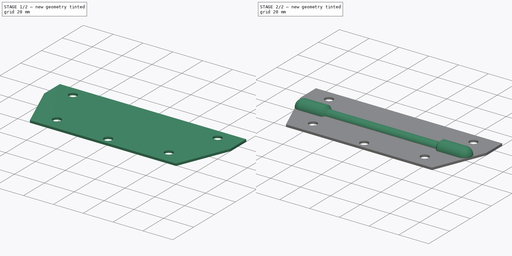
[diagram: build sequence overview — one tinted view per stage of 2, left to right]
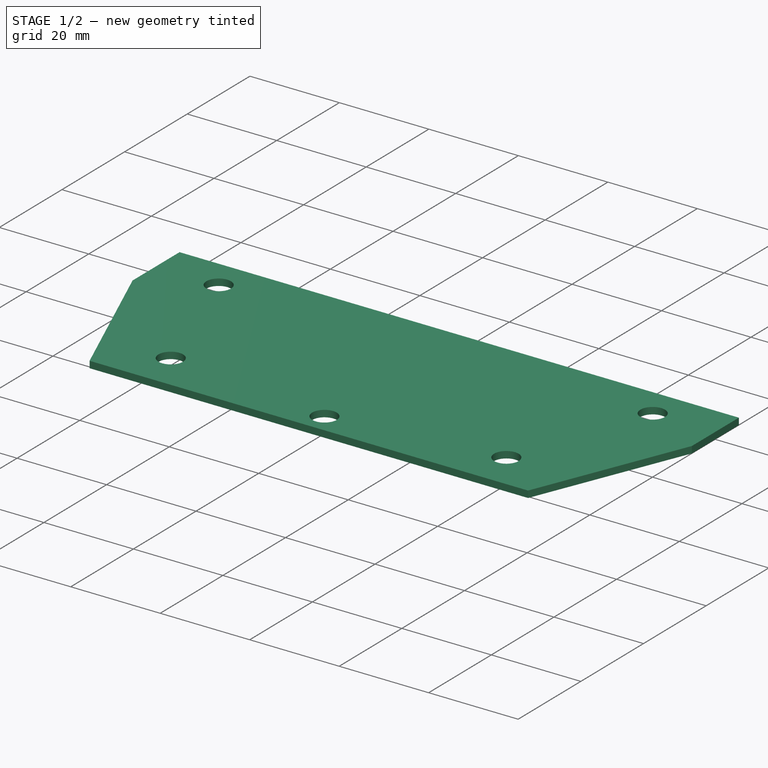
[diagram: stage 1 of 2 — iso view after this stage's code; geometry added in this stage tinted green]
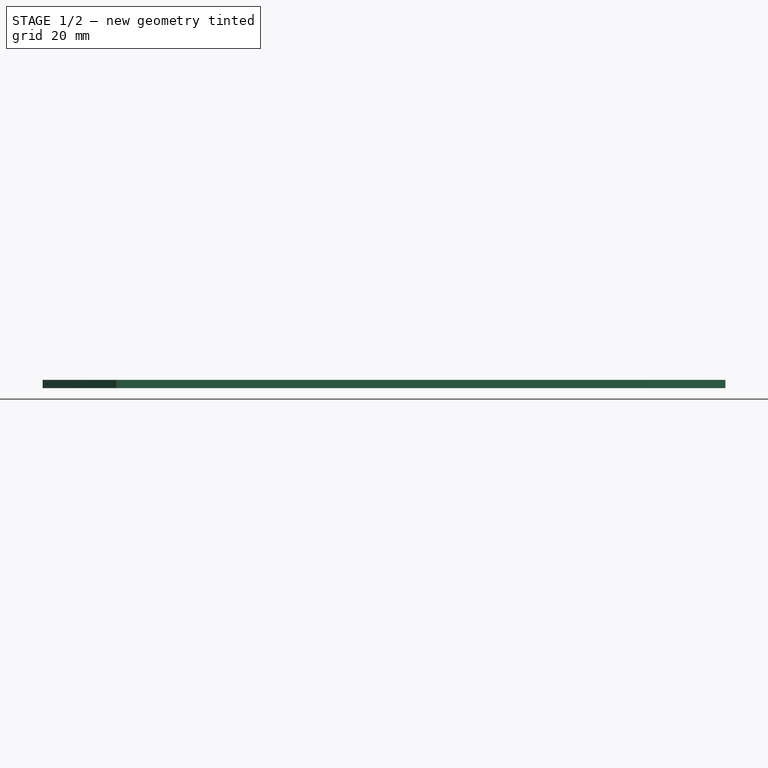
[diagram: stage 1 of 2 — front view after this stage's code; geometry added in this stage tinted green]
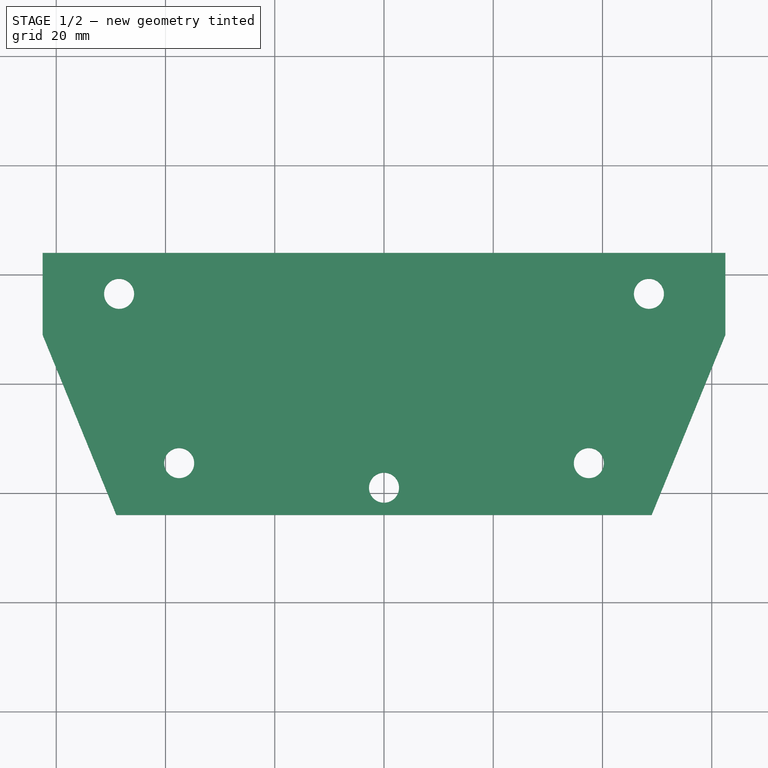
[diagram: stage 1 of 2 — top view after this stage's code; geometry added in this stage tinted green]
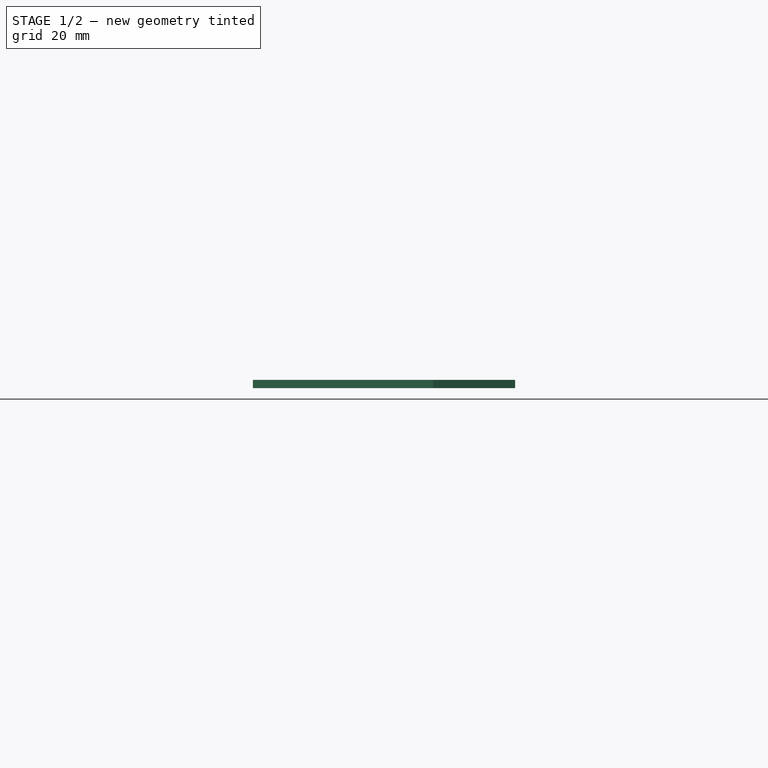
[diagram: stage 1 of 2 — right view after this stage's code; geometry added in this stage tinted green]
FCSTD DOCUMENT  (FreeCAD 1.0R39109 (Git))
Label: OCT-CHAND-AA
License: All rights reserved
LicenseURL: https://en.wikipedia.org/wiki/All_rights_reserved
objects: Sketcher::SketchObject×2, PartDesign::Pad×1, PartDesign::Revolution×1, PartDesign::Body×1
note: 11 computed .brp shape members not serialized (recipe doc carries the construction recipe); baked Part::Feature solids carry a one-line shape summary decoded from their .brp

FEATURE [Sketcher::SketchObject] Sketch
  ArcFitTolerance = 1e-06
  AttachmentSupport = -> [XY_Plane]
  FullyConstrained = true
  MakeInternals = false
  MapMode = 5
  sketch-geometry (13):
    g0: LineSegment StartX=-62.5 StartY=24 StartZ=0 EndX=62.5 EndY=24 EndZ=0
    g1: LineSegment StartX=62.5 StartY=24 StartZ=0 EndX=62.5 EndY=9 EndZ=0
    g2: LineSegment StartX=62.5 StartY=9 StartZ=0 EndX=49 EndY=-24 EndZ=0
    g3: LineSegment StartX=49 StartY=-24 StartZ=0 EndX=-49 EndY=-24 EndZ=0
    g4: LineSegment StartX=-49 StartY=-24 StartZ=0 EndX=-62.5 EndY=9 EndZ=0
    g5: LineSegment StartX=-62.5 StartY=9 StartZ=0 EndX=-62.5 EndY=24 EndZ=0
    g6: Circle CenterX=0 CenterY=-19 CenterZ=0 NormalX=0 NormalY=0 NormalZ=1 AngleXU=0 Radius=2.75
    g7: Circle CenterX=37.5 CenterY=-14.5 CenterZ=0 NormalX=0 NormalY=0 NormalZ=1 AngleXU=0 Radius=2.75
    g8: Circle CenterX=-37.5 CenterY=-14.5 CenterZ=0 NormalX=0 NormalY=0 NormalZ=1 AngleXU=0 Radius=2.75
    g9: Circle CenterX=-48.5 CenterY=16.5 CenterZ=0 NormalX=0 NormalY=0 NormalZ=1 AngleXU=0 Radius=2.75
    g10: Circle CenterX=48.5 CenterY=16.5 CenterZ=0 NormalX=0 NormalY=0 NormalZ=1 AngleXU=0 Radius=2.75
    g11: LineSegment [constr] StartX=48.5 StartY=16.5 StartZ=0 EndX=62.5 EndY=24 EndZ=0
    g12: LineSegment [constr] StartX=48.5 StartY=16.5 StartZ=0 EndX=62.5 EndY=9 EndZ=0
  constraints (34):
    c: Coincident(g0,g1)
    c: Coincident(g1,g2)
    c: Horizontal(g3)
    c: Coincident(g4,g5)
    c: Coincident(g5,g0)
    c: Vertical(g5)
    c: Vertical(g1)
    c: Symmetric(g0,g0,g-2)
    c: DistanceX(g0,g0) = 125
    c: DistanceY(g3,g0) = 48
    c: PointOnObject(g6,g-2)
    c: Equal(g6,g8)
    c: Equal(g8,g9)
    c: Equal(g9,g7)
    c: Equal(g7,g10)
    c: Diameter(g9) = 5.5
    c: Symmetric(g9,g10,g-2)
    c: Symmetric(g7,g8,g-2)
    c: DistanceY(g7,g10) = 31
    c: DistanceY(g6,g7) = 4.5
    c: DistanceX(g6,g7) = 37.5
    c: DistanceX(g-1,g10) = 48.5
    c: DistanceY(g3,g7) = 9.5
    c: Equal(g2,g4)
    c: Equal(g5,g1)
    c: DistanceX(g3,g3) = 98
    c: Coincident(g11,g10)
    c: Coincident(g11,g0)
    c: Coincident(g12,g10)
    c: Coincident(g12,g1)
    c: Equal(g12,g11)
    c: Distance(g0,g-1) = 24
    c: Coincident(g2,g3)
    c: Coincident(g4,g3)
FEATURE [PartDesign::Pad] Pad
  Direction = (0,0,1)
  Length = 1.5
  Length2 = 10
  Profile = -> Sketch
  ReferenceAxis = -> Sketch [N_Axis]
  Refine = true
  Reversed = true
  Suppressed = false
  Type = 0
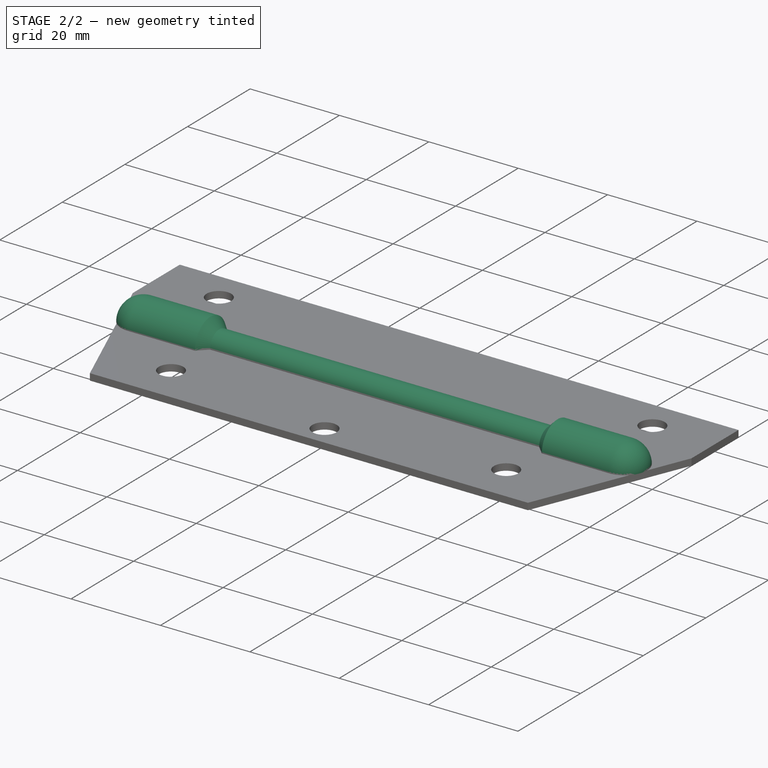
[diagram: stage 2 of 2 — iso view after this stage's code; geometry added in this stage tinted green]
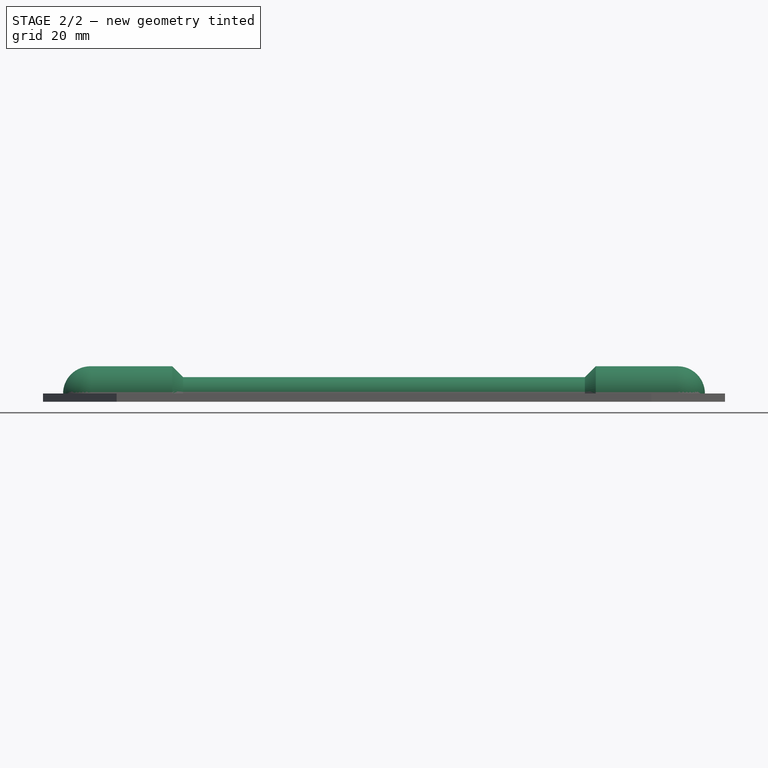
[diagram: stage 2 of 2 — front view after this stage's code; geometry added in this stage tinted green]
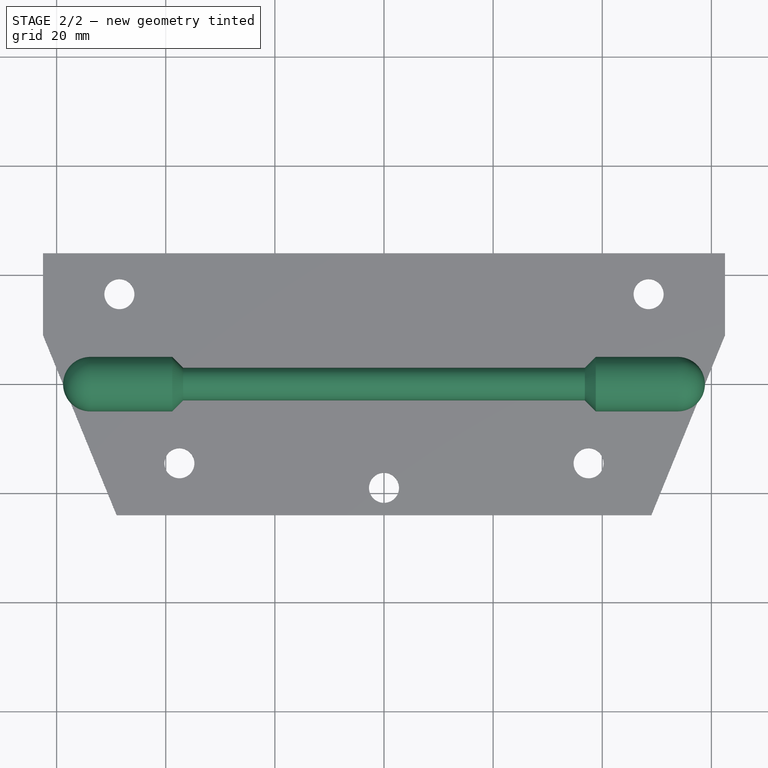
[diagram: stage 2 of 2 — top view after this stage's code; geometry added in this stage tinted green]
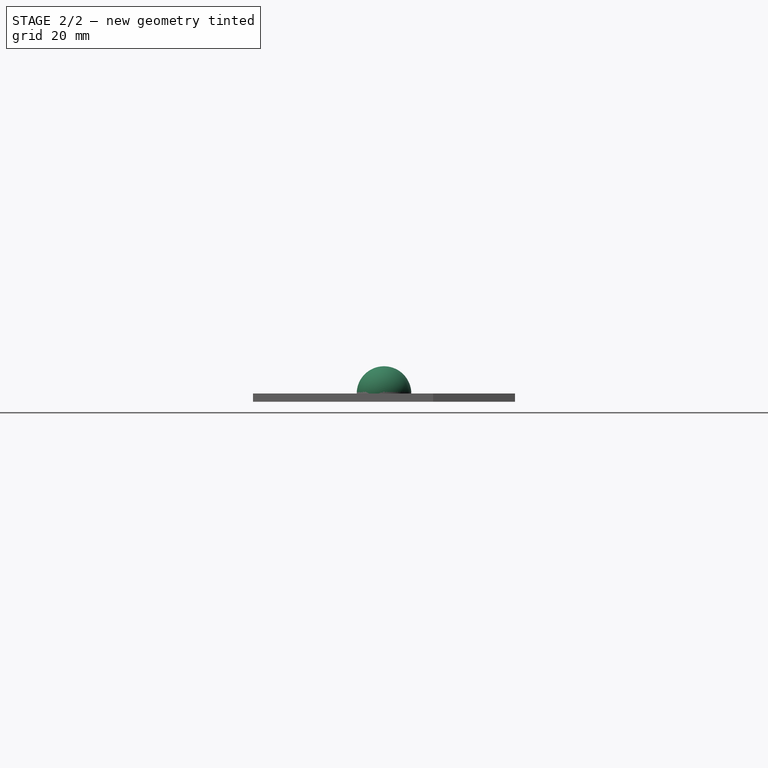
[diagram: stage 2 of 2 — right view after this stage's code; geometry added in this stage tinted green]
FEATURE [Sketcher::SketchObject] Sketch001
  ArcFitTolerance = 1e-06
  AttachmentSupport = -> [XY_Plane]
  ExternalGeometry = -> [Pad]
  FullyConstrained = true
  MakeInternals = false
  MapMode = 2
  sketch-geometry (17):
    g0: LineSegment StartX=-53.8182 StartY=5 StartZ=0 EndX=-38.8182 EndY=5 EndZ=0
    g1: LineSegment StartX=-38.8182 StartY=5 StartZ=0 EndX=-36.8182 EndY=3 EndZ=0
    g2: LineSegment StartX=-36.8182 StartY=3 StartZ=0 EndX=36.8182 EndY=3 EndZ=0
    g3: LineSegment StartX=36.8182 StartY=3 StartZ=0 EndX=38.8182 EndY=5 EndZ=0
    g4: LineSegment StartX=38.8182 StartY=5 StartZ=0 EndX=53.8182 EndY=5 EndZ=0
    g5: ArcOfCircle CenterX=-53.8182 CenterY=0 CenterZ=0 NormalX=0 NormalY=0 NormalZ=1 AngleXU=0 Radius=5 StartAngle=1.5708 EndAngle=3.14159
    g6: ArcOfCircle CenterX=53.8182 CenterY=-2e-16 CenterZ=0 NormalX=0 NormalY=0 NormalZ=1 AngleXU=0 Radius=5 StartAngle=0 EndAngle=1.5708
    g7: ArcOfCircle CenterX=53.8182 CenterY=-2e-16 CenterZ=0 NormalX=0 NormalY=0 NormalZ=1 AngleXU=0 Radius=4 StartAngle=3.775e-13 EndAngle=1.5708
    g8: LineSegment StartX=53.8182 StartY=4 StartZ=0 EndX=39.2324 EndY=4 EndZ=0
    g9: LineSegment StartX=39.2324 StartY=4 StartZ=0 EndX=37.2324 EndY=2 EndZ=0
    g10: LineSegment StartX=37.2324 StartY=2 StartZ=0 EndX=-37.2324 EndY=2 EndZ=0
    g11: LineSegment StartX=-37.2324 StartY=2 StartZ=0 EndX=-39.2324 EndY=4 EndZ=0
    g12: LineSegment StartX=-39.2324 StartY=4 StartZ=0 EndX=-53.8182 EndY=4 EndZ=0
    g13: ArcOfCircle CenterX=-53.8182 CenterY=0 CenterZ=0 NormalX=0 NormalY=0 NormalZ=1 AngleXU=0 Radius=4 StartAngle=1.5708 EndAngle=3.14159
    g14: LineSegment [constr] StartX=-39.2324 StartY=4 StartZ=0 EndX=-38.5253 EndY=4.70711 EndZ=0
    g15: LineSegment StartX=57.8182 StartY=-2e-16 StartZ=0 EndX=58.8182 EndY=-2e-16 EndZ=0
    g16: LineSegment StartX=-58.8182 StartY=1.2155e-12 StartZ=0 EndX=-57.8182 EndY=1.2155e-12 EndZ=0
  constraints (48):
    c: Coincident(g0,g1)
    c: Coincident(g1,g2)
    c: Coincident(g2,g3)
    c: Coincident(g3,g4)
    c: Horizontal(g4)
    c: PointOnObject(g6,g-1)
    c: PointOnObject(g5,g-1)
    c: Tangent(g6,g4) = 1.5708
    c: Horizontal(g0)
    c: Tangent(g5,g0) = 1.5708
    c: Angle(g2,g1) = 2.35619
    c: PointOnObject(g0,g4)
    c: Equal(g3,g1)
    c: Symmetric(g2,g1,g-2)
    c: Equal(g4,g0)
    c: Equal(g5,g6)
    c: DistanceY(g5,g0) = 5
    c: DistanceY(g1,g0) = 2
    c: PointOnObject(g5,g-3)
    c: DistanceX(g0,g0) = 15
    c: Coincident(g7,g6)
    c: Coincident(g8,g7)
    c: Horizontal(g8)
    c: Coincident(g9,g8)
    c: Coincident(g10,g9)
    c: Coincident(g11,g10)
    c: Coincident(g12,g11)
    c: Horizontal(g12)
    c: Coincident(g13,g5)
    c: Tangent(g13,g12) = -1.5708
    c: DistanceX(g5,g13) = 1
    c: Parallel(g11,g1)
    c: DistanceY(g10,g1) = 1
    c: Coincident(g14,g11)
    c: PointOnObject(g14,g1)
    c: Perpendicular(g11,g14)
    c: Distance(g14,g14) = 1
    c: Equal(g12,g8)
    c: Equal(g7,g13)
    c: Equal(g9,g11)
    c: Symmetric(g9,g10,g-2)
    c: Coincident(g15,g7)
    c: Coincident(g15,g6)
    c: Horizontal(g15)
    c: Coincident(g16,g5)
    c: Coincident(g16,g13)
    c: Horizontal(g16)
    c: Perpendicular(g5,g16)
FEATURE [PartDesign::Revolution] Revolution
  Angle = 180
  Angle2 = 60
  Axis = (1,0,0)
  Base = (0,0,0)
  BaseFeature = -> Pad
  Profile = -> Sketch001
  ReferenceAxis = -> Sketch001 [H_Axis]
  Refine = true
  Suppressed = false
  Type = 0
FEATURE [PartDesign::Body] Body  label="base"
  AllowCompound = false
  Group = -> [Sketch,Pad,Sketch001,Revolution]
  Origin = -> Origin
  Tip = -> Revolution
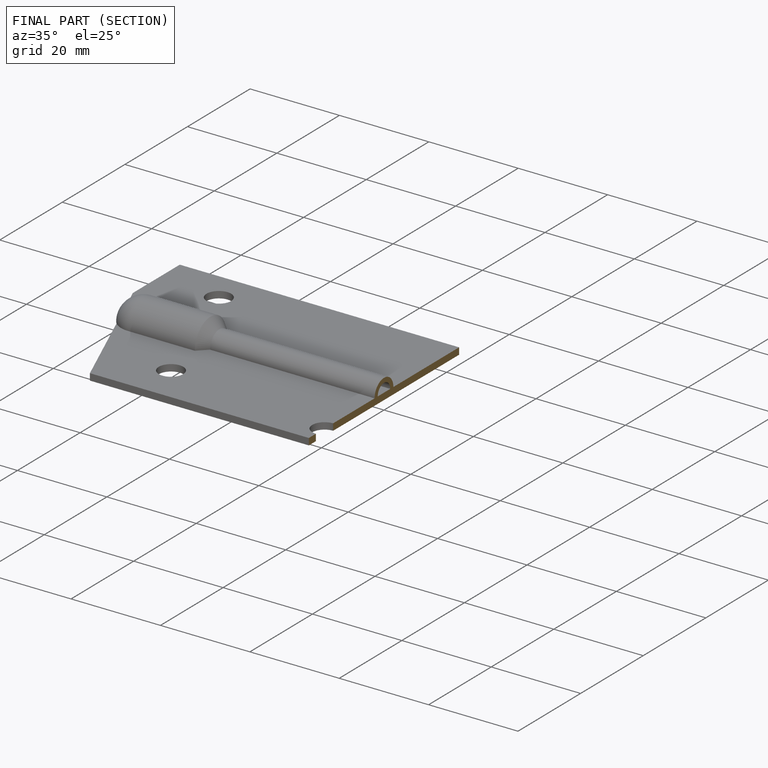
[diagram: finished part — half-section view (interior)]
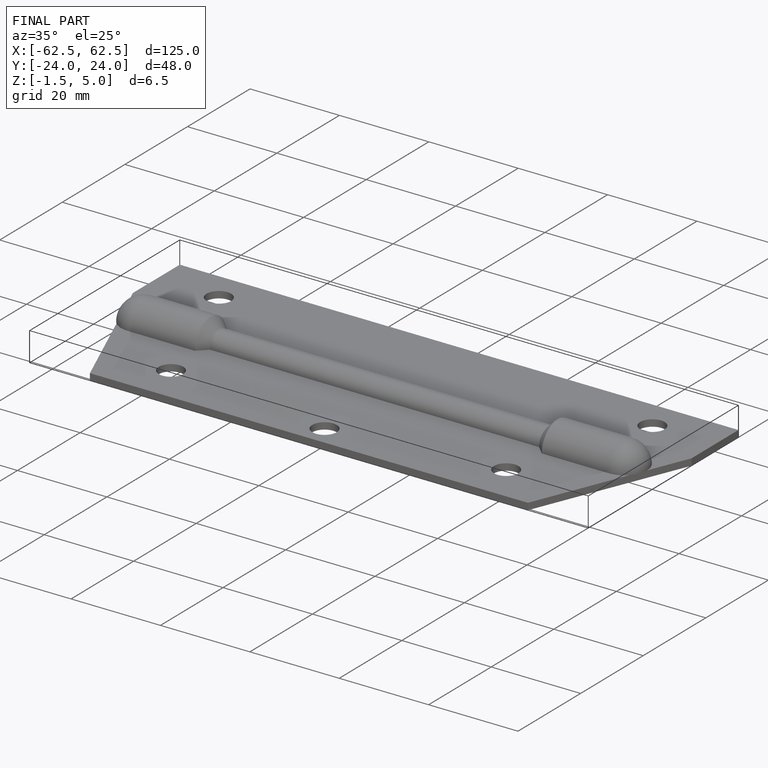
[diagram: finished part — iso view with bounding-box wireframe]
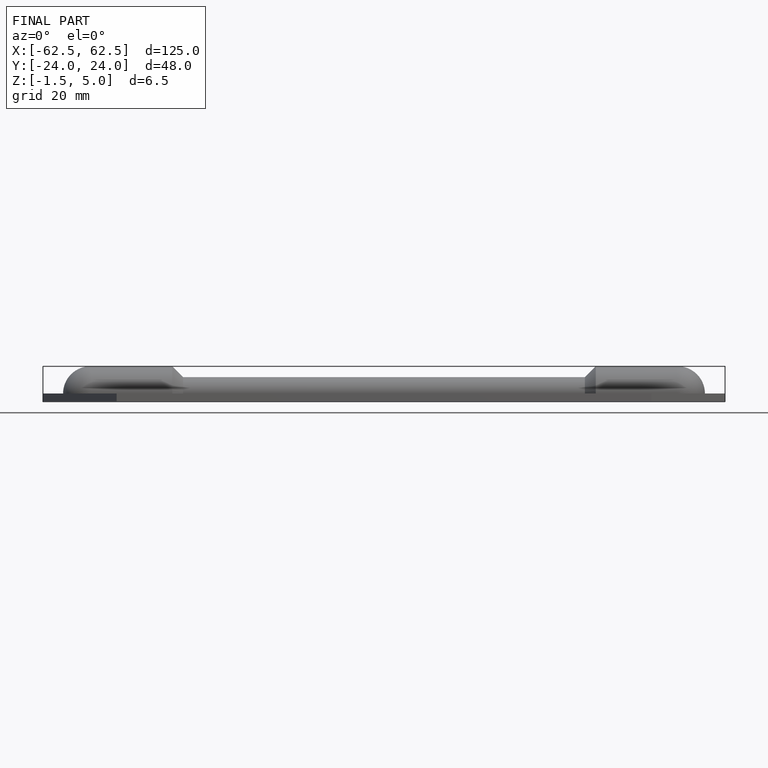
[diagram: finished part — front view with bounding-box wireframe]
